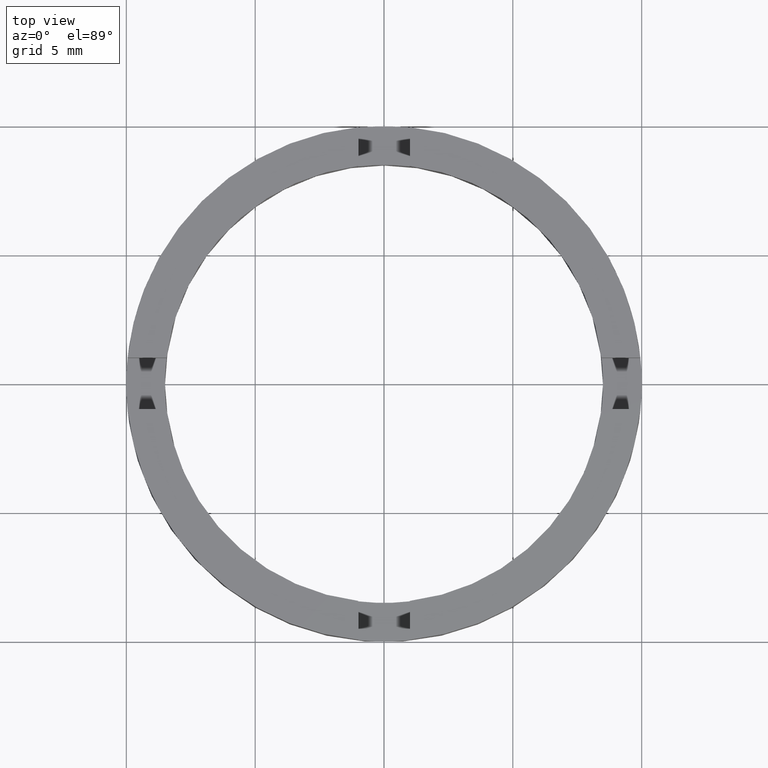
[diagram: clean part render]
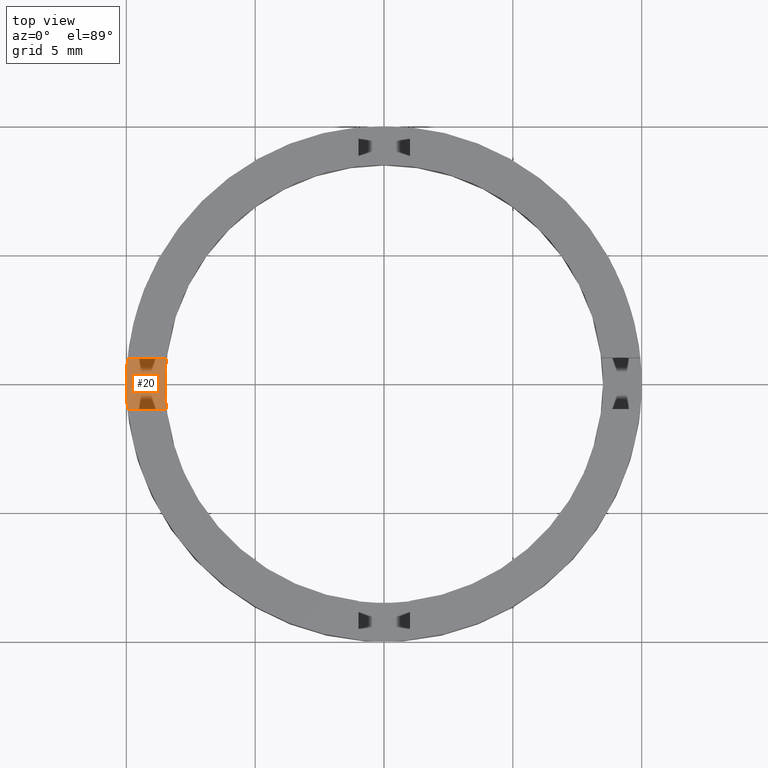
[diagram: same view with one face highlighted and labeled with its STEP entity id]
A machine part, top view. The second image highlights one B-rep face of the part: STEP entity #20.
In plain terms, the highlighted planar face has unit normal (-0, 0, 1).
Its self-contained STEP definition (entity closure, byte-faithful):
#4 = LINE ( 'NONE', #633, #526 ) ;
#10 = DIRECTION ( 'NONE',  ( 1.000000000000000000, 0.000000000000000000, 0.000000000000000000 ) ) ;
#20 = ADVANCED_FACE ( 'NONE', ( #321 ), #248, .T. ) ;
#22 = LINE ( 'NONE', #624, #532 ) ;
#28 = DIRECTION ( 'NONE',  ( -0.000000000000000000, 0.000000000000000000, 1.000000000000000000 ) ) ;
#31 = DIRECTION ( 'NONE',  ( 1.000000000000000000, 0.000000000000000000, 0.000000000000000000 ) ) ;
#65 = ORIENTED_EDGE ( 'NONE', *, *, #702, .F. ) ;
#66 = DIRECTION ( 'NONE',  ( 1.000000000000000000, 0.000000000000000000, 0.000000000000000000 ) ) ;
#118 = DIRECTION ( 'NONE',  ( 0.000000000000000000, -0.000000000000000000, -1.000000000000000000 ) ) ;
#128 = VERTEX_POINT ( 'NONE', #214 ) ;
#152 = CARTESIAN_POINT ( 'NONE',  ( 0.000000000000000000, 0.000000000000000000, 1.500000000000000000 ) ) ;
#214 = CARTESIAN_POINT ( 'NONE',  ( -9.949874371066202983, -0.9999999999999640288, 1.500000000000000000 ) ) ;
#248 = PLANE ( 'NONE',  #599 ) ;
#274 = CIRCLE ( 'NONE', #286, 10.00000000000000000 ) ;
#286 = AXIS2_PLACEMENT_3D ( 'NONE', #556, #28, #10 ) ;
#287 = CIRCLE ( 'NONE', #742, 8.500000000000000000 ) ;
#306 = EDGE_CURVE ( 'NONE', #329, #403, #367, .T. ) ;
#308 = AXIS2_PLACEMENT_3D ( 'NONE', #648, #118, #31 ) ;
#321 = FACE_OUTER_BOUND ( 'NONE', #442, .T. ) ;
#329 = VERTEX_POINT ( 'NONE', #564 ) ;
#340 = ORIENTED_EDGE ( 'NONE', *, *, #689, .T. ) ;
#343 = DIRECTION ( 'NONE',  ( 1.000000000000000000, 1.243449787580175483E-14, 0.000000000000000000 ) ) ;
#367 = CIRCLE ( 'NONE', #308, 8.500000000000000000 ) ;
#372 = CARTESIAN_POINT ( 'NONE',  ( -8.440971508067063311, 1.000000000000030642, 1.500000000000000000 ) ) ;
#373 = VERTEX_POINT ( 'NONE', #506 ) ;
#376 = DIRECTION ( 'NONE',  ( 1.000000000000000000, -3.729655473350134464E-15, 0.000000000000000000 ) ) ;
#403 = VERTEX_POINT ( 'NONE', #372 ) ;
#442 = EDGE_LOOP ( 'NONE', ( #65, #340, #703, #663, #485, #658 ) ) ;
#460 = CARTESIAN_POINT ( 'NONE',  ( -10.00000000000000000, 0.000000000000000000, 1.500000000000000000 ) ) ;
#465 = CARTESIAN_POINT ( 'NONE',  ( 0.000000000000000000, 0.000000000000000000, 1.500000000000000000 ) ) ;
#476 = EDGE_CURVE ( 'NONE', #669, #329, #287, .T. ) ;
#485 = ORIENTED_EDGE ( 'NONE', *, *, #476, .T. ) ;
#492 = DIRECTION ( 'NONE',  ( 1.000000000000000000, 0.000000000000000000, 0.000000000000000000 ) ) ;
#494 = CARTESIAN_POINT ( 'NONE',  ( 0.000000000000000000, 0.000000000000000000, 1.500000000000000000 ) ) ;
#506 = CARTESIAN_POINT ( 'NONE',  ( -9.949874371066195877, 1.000000000000036193, 1.500000000000000000 ) ) ;
#523 = CIRCLE ( 'NONE', #705, 10.00000000000000000 ) ;
#526 = VECTOR ( 'NONE', #714, 1000.000000000000000 ) ;
#532 = VECTOR ( 'NONE', #376, 1000.000000000000000 ) ;
#542 = DIRECTION ( 'NONE',  ( -0.000000000000000000, 0.000000000000000000, 1.000000000000000000 ) ) ;
#556 = CARTESIAN_POINT ( 'NONE',  ( 0.000000000000000000, 0.000000000000000000, 1.500000000000000000 ) ) ;
#564 = CARTESIAN_POINT ( 'NONE',  ( -8.500000000000000000, 0.000000000000000000, 1.500000000000000000 ) ) ;
#599 = AXIS2_PLACEMENT_3D ( 'NONE', #152, #542, #66 ) ;
#624 = CARTESIAN_POINT ( 'NONE',  ( -3.729655473350139197E-15, -1.000000000000001110, 1.500000000000000000 ) ) ;
#633 = CARTESIAN_POINT ( 'NONE',  ( 3.751339516799841397E-15, 0.9999999999999988898, 1.500000000000000000 ) ) ;
#648 = CARTESIAN_POINT ( 'NONE',  ( 0.000000000000000000, 0.000000000000000000, 1.500000000000000000 ) ) ;
#653 = VERTEX_POINT ( 'NONE', #460 ) ;
#658 = ORIENTED_EDGE ( 'NONE', *, *, #306, .T. ) ;
#663 = ORIENTED_EDGE ( 'NONE', *, *, #713, .T. ) ;
#669 = VERTEX_POINT ( 'NONE', #760 ) ;
#673 = EDGE_CURVE ( 'NONE', #653, #128, #274, .T. ) ;
#689 = EDGE_CURVE ( 'NONE', #373, #653, #523, .T. ) ;
#702 = EDGE_CURVE ( 'NONE', #373, #403, #4, .T. ) ;
#703 = ORIENTED_EDGE ( 'NONE', *, *, #673, .T. ) ;
#705 = AXIS2_PLACEMENT_3D ( 'NONE', #494, #748, #492 ) ;
#713 = EDGE_CURVE ( 'NONE', #128, #669, #22, .T. ) ;
#714 = DIRECTION ( 'NONE',  ( 1.000000000000000000, -3.751339516799845342E-15, 0.000000000000000000 ) ) ;
#729 = DIRECTION ( 'NONE',  ( 0.000000000000000000, -0.000000000000000000, -1.000000000000000000 ) ) ;
#742 = AXIS2_PLACEMENT_3D ( 'NONE', #465, #729, #343 ) ;
#748 = DIRECTION ( 'NONE',  ( -0.000000000000000000, 0.000000000000000000, 1.000000000000000000 ) ) ;
#760 = CARTESIAN_POINT ( 'NONE',  ( -8.440971508067070417, -0.9999999999999696909, 1.500000000000000000 ) ) ;